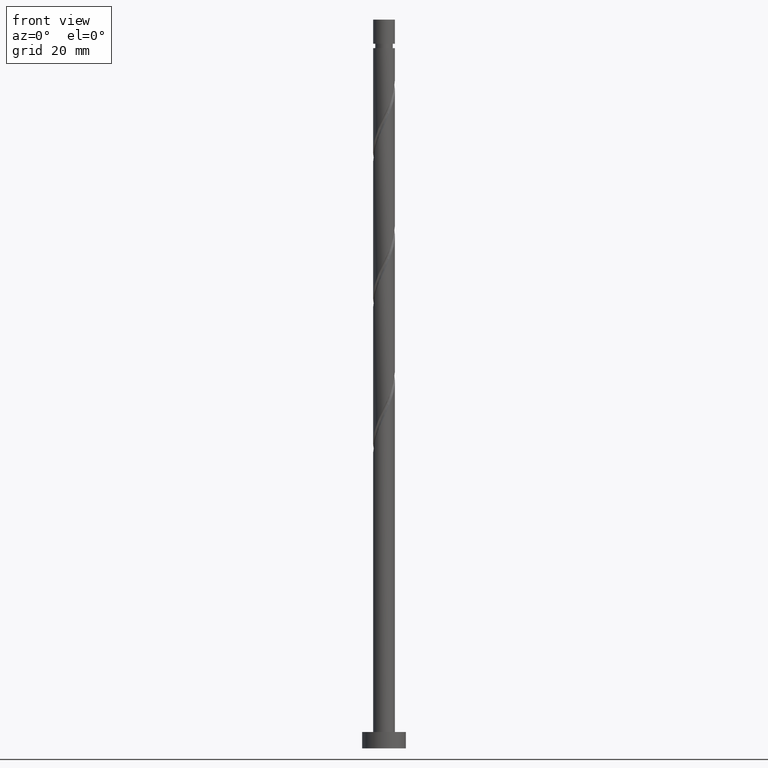
[diagram: clean part render]
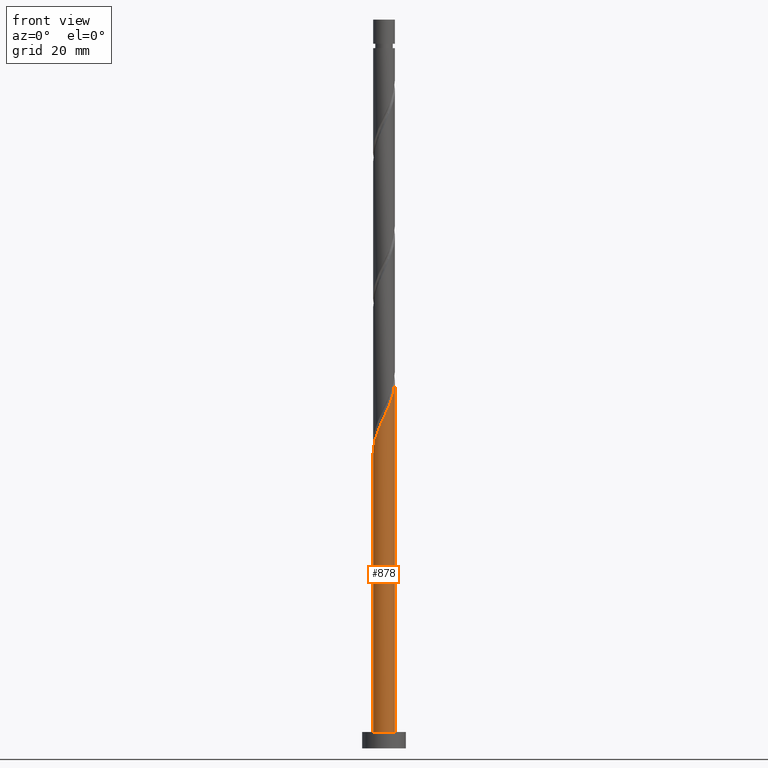
[diagram: same view with one face highlighted and labeled with its STEP entity id]
A machine part, front view. The second image highlights one B-rep face of the part: STEP entity #878.
In plain terms, the highlighted cylindrical surface (edge-blend (fillet) strip) has radius 2 mm, axis along (-0, -0, -1).
Its self-contained STEP definition (entity closure, byte-faithful):
#3 = CARTESIAN_POINT ( 'NONE',  ( -2.000000000000002665, 9.789239150438384053E-15, 54.03187821203790264 ) ) ;
#9 = CARTESIAN_POINT ( 'NONE',  ( 1.883197487972274375, -0.7322950311120149935, 65.79042360042973314 ) ) ;
#11 = EDGE_CURVE ( 'NONE', #1559, #1122, #277, .T. ) ;
#19 = CARTESIAN_POINT ( 'NONE',  ( 0.6798004310727963073, -1.902776961498554797, 62.15405996406609290 ) ) ;
#27 = LINE ( 'NONE', #553, #57 ) ;
#57 = VECTOR ( 'NONE', #520, 1000.000000000000000 ) ;
#134 = DIRECTION ( 'NONE',  ( -0.000000000000000000, -0.000000000000000000, -1.000000000000000000 ) ) ;
#145 = DIRECTION ( 'NONE',  ( -1.000000000000000000, 0.000000000000000000, 0.000000000000000000 ) ) ;
#158 = DIRECTION ( 'NONE',  ( -0.000000000000000000, -0.000000000000000000, -1.000000000000000000 ) ) ;
#225 = AXIS2_PLACEMENT_3D ( 'NONE', #1438, #415, #1570 ) ;
#262 = CARTESIAN_POINT ( 'NONE',  ( -1.883409435608319527, -0.6728810428757548978, 55.48739329739942150 ) ) ;
#277 = LINE ( 'NONE', #530, #557 ) ;
#286 = CARTESIAN_POINT ( 'NONE',  ( 2.000000000000003109, -0.2290578547702467882, 66.87925159239996731 ) ) ;
#385 = CARTESIAN_POINT ( 'NONE',  ( -2.000000000000003109, -0.05755105304763948049, 54.15397621675613493 ) ) ;
#415 = DIRECTION ( 'NONE',  ( 0.000000000000000000, 0.000000000000000000, 1.000000000000000000 ) ) ;
#417 = CARTESIAN_POINT ( 'NONE',  ( -2.000000000000000000, 0.000000000000000000, 3.000000000000000000 ) ) ;
#426 = CYLINDRICAL_SURFACE ( 'NONE', #1535, 2.000000000000000000 ) ;
#436 = EDGE_CURVE ( 'NONE', #451, #866, #27, .T. ) ;
#451 = VERTEX_POINT ( 'NONE', #1332 ) ;
#515 = CARTESIAN_POINT ( 'NONE',  ( -1.980155124014553403, -0.4020876473299553333, 54.88133269133881242 ) ) ;
#520 = DIRECTION ( 'NONE',  ( -0.000000000000000000, -0.000000000000000000, -1.000000000000000000 ) ) ;
#522 = CARTESIAN_POINT ( 'NONE',  ( -0.1703224295138029420, -1.992734370156877821, 60.33587814588429410 ) ) ;
#529 = CARTESIAN_POINT ( 'NONE',  ( 1.948211798543802997, -0.4521844623765087223, 66.39648420649031380 ) ) ;
#530 = CARTESIAN_POINT ( 'NONE',  ( 2.000000000000000000, 2.449293598294706414E-16, 133.4499999999999886 ) ) ;
#544 = CARTESIAN_POINT ( 'NONE',  ( 0.000000000000000000, 0.000000000000000000, 133.4499999999999886 ) ) ;
#549 = CARTESIAN_POINT ( 'NONE',  ( 2.000000000000002665, 1.278808170148940589E-15, 67.36521154537125256 ) ) ;
#553 = CARTESIAN_POINT ( 'NONE',  ( -2.000000000000000000, 0.000000000000000000, 133.4499999999999886 ) ) ;
#557 = VECTOR ( 'NONE', #134, 1000.000000000000000 ) ;
#578 = EDGE_CURVE ( 'NONE', #866, #1122, #1562, .T. ) ;
#636 = CARTESIAN_POINT ( 'NONE',  ( -0.4568343776401063705, -1.968245701812304072, 59.72981753982368502 ) ) ;
#668 = CARTESIAN_POINT ( 'NONE',  ( 1.188337955536408641, -1.634179211325360370, 63.36618117618731105 ) ) ;
#761 = CARTESIAN_POINT ( 'NONE',  ( 0.3979949748426482858, -1.960000000000002851, 61.54799935800549093 ) ) ;
#775 = CARTESIAN_POINT ( 'NONE',  ( -1.786663747202084762, -0.9436744384215548509, 56.09345390346002347 ) ) ;
#781 = CARTESIAN_POINT ( 'NONE',  ( 2.000000000000002665, 1.278808170148940786E-15, 67.36521154537125256 ) ) ;
#783 = FACE_OUTER_BOUND ( 'NONE', #1085, .T. ) ;
#791 = CARTESIAN_POINT ( 'NONE',  ( -1.448427499289743459, -1.408810338760221326, 57.30557511558122741 ) ) ;
#848 = ORIENTED_EDGE ( 'NONE', *, *, #11, .F. ) ;
#866 = VERTEX_POINT ( 'NONE', #417 ) ;
#876 =( BOUNDED_CURVE ( )  B_SPLINE_CURVE ( 2, ( #3, #385, #888, #515, #262, #775, #1558, #791, #1288, #1168, #1543, #636, #522, #1311, #761, #19, #1021, #668, #902, #893, #1416, #9, #529, #286, #781 ),
 .UNSPECIFIED., .F., .T. ) 
 B_SPLINE_CURVE_WITH_KNOTS ( ( 3, 2, 2, 2, 2, 2, 2, 2, 2, 2, 2, 2, 3 ),
 ( 0.05452521624175108578, 0.05681818181818176772, 0.06818181818181823228, 0.07954545454545458583, 0.09090909090909093937, 0.1022727272727272929, 0.1136363636363636465, 0.1250000000000000000, 0.1363636363636363535, 0.1477272727272727071, 0.1590909090909090606, 0.1704545454545454142, 0.1795252162417512731 ),
 .UNSPECIFIED. ) 
 CURVE ( )  GEOMETRIC_REPRESENTATION_ITEM ( )  RATIONAL_B_SPLINE_CURVE ( ( 0.9061101570135620120, 0.9072237824201442313, 0.9090909090909219392, 0.8998376744372241776, 0.9090909090909219392, 0.8998376744372241776, 0.9090909090909219392, 0.8998376744372241776, 0.9090909090909219392, 0.8998376744372241776, 0.9090909090909219392, 0.8998376744372241776, 0.9090909090909219392, 0.8998376744372241776, 0.9090909090909219392, 0.8998376744372241776, 0.9090909090909219392, 0.8998376744372241776, 0.9090909090909219392, 0.8998376744372241776, 0.9090909090909219392, 0.8998376744372241776, 0.9090909090909219392, 0.9017048011080016634, 0.9061101570135622341 ) ) 
 REPRESENTATION_ITEM ( '' )  );
#878 = ADVANCED_FACE ( 'NONE', ( #783 ), #426, .T. ) ;
#888 = CARTESIAN_POINT ( 'NONE',  ( -1.996690616564942733, -0.1150068768444767187, 54.27527208527820335 ) ) ;
#893 = CARTESIAN_POINT ( 'NONE',  ( 1.600603406160406417, -1.233189980288574850, 64.57830238830852920 ) ) ;
#901 = ORIENTED_EDGE ( 'NONE', *, *, #578, .T. ) ;
#902 = CARTESIAN_POINT ( 'NONE',  ( 1.394470680848407307, -1.433684595806968165, 63.97224178224790592 ) ) ;
#910 = ORIENTED_EDGE ( 'NONE', *, *, #436, .T. ) ;
#1021 = CARTESIAN_POINT ( 'NONE',  ( 0.9340691933046023632, -1.768478086411958028, 62.76012057012670198 ) ) ;
#1078 = CARTESIAN_POINT ( 'NONE',  ( 2.000000000000000000, 2.449293598294706414E-16, 3.000000000000000000 ) ) ;
#1085 = EDGE_LOOP ( 'NONE', ( #848, #1499, #910, #901 ) ) ;
#1122 = VERTEX_POINT ( 'NONE', #1078 ) ;
#1168 = CARTESIAN_POINT ( 'NONE',  ( -0.9928482695149690729, -1.759812803970229655, 58.51769632770245266 ) ) ;
#1288 = CARTESIAN_POINT ( 'NONE',  ( -1.220637884402356210, -1.584311571365225380, 57.91163572164185780 ) ) ;
#1311 = CARTESIAN_POINT ( 'NONE',  ( 0.1161895186125003615, -2.017223038501450461, 60.94193875194486054 ) ) ;
#1332 = CARTESIAN_POINT ( 'NONE',  ( -2.000000000000002665, 9.789239150438384053E-15, 54.03187821203790264 ) ) ;
#1416 = CARTESIAN_POINT ( 'NONE',  ( 1.741900447066340618, -0.9827425057002954212, 65.18436299436912407 ) ) ;
#1438 = CARTESIAN_POINT ( 'NONE',  ( 0.000000000000000000, 0.000000000000000000, 3.000000000000000000 ) ) ;
#1478 = EDGE_CURVE ( 'NONE', #451, #1559, #876, .T. ) ;
#1499 = ORIENTED_EDGE ( 'NONE', *, *, #1478, .F. ) ;
#1535 = AXIS2_PLACEMENT_3D ( 'NONE', #544, #158, #145 ) ;
#1543 = CARTESIAN_POINT ( 'NONE',  ( -0.7248413235775378327, -1.864029252891266752, 59.12375693376306884 ) ) ;
#1558 = CARTESIAN_POINT ( 'NONE',  ( -1.617545623245913999, -1.176242388590888144, 56.69951450952064675 ) ) ;
#1559 = VERTEX_POINT ( 'NONE', #549 ) ;
#1562 = CIRCLE ( 'NONE', #225, 2.000000000000000000 ) ;
#1570 = DIRECTION ( 'NONE',  ( 1.000000000000000000, 0.000000000000000000, 0.000000000000000000 ) ) ;